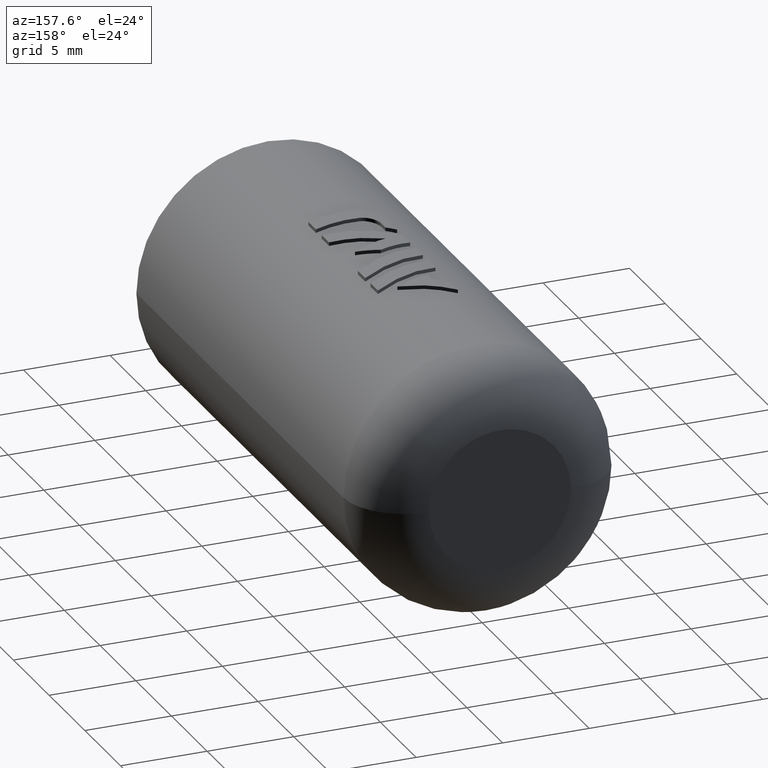
[diagram: clean part render]
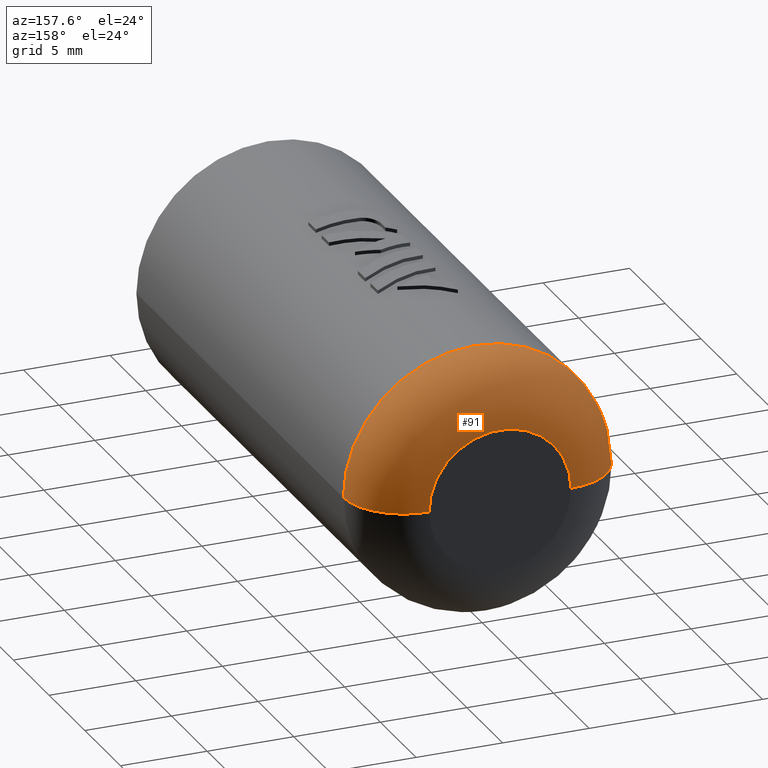
[diagram: same view with one face highlighted and labeled with its STEP entity id]
A machine part, auxiliary view. The second image highlights one B-rep face of the part: STEP entity #91.
In plain terms, the highlighted toroidal blend (fillet) surface has major radius 4.1 mm and minor (blend) radius 3.5 mm.
Its self-contained STEP definition (entity closure, byte-faithful):
#91=ADVANCED_FACE('',(#183),#184,.T.);
#183=FACE_OUTER_BOUND('',#1708,.T.);
#184=TOROIDAL_SURFACE('',#1709,4.1,3.5);
#1708=EDGE_LOOP('',(#1910,#1911,#1912,#1913));
#1709=AXIS2_PLACEMENT_3D('',#1914,#1915,#1916);
#1910=ORIENTED_EDGE('',*,*,#2560,.F.);
#1911=ORIENTED_EDGE('',*,*,#2561,.T.);
#1912=ORIENTED_EDGE('',*,*,#2562,.F.);
#1913=ORIENTED_EDGE('',*,*,#2563,.F.);
#1914=CARTESIAN_POINT('',(0.0,29.0,0.0));
#1915=DIRECTION('',(0.0,-1.0,0.0));
#1916=DIRECTION('',(1.0,0.0,-6.12323399573677E-17));
#2560=EDGE_CURVE('',#2786,#2787,#2788,.T.);
#2561=EDGE_CURVE('',#2786,#2789,#2790,.T.);
#2562=EDGE_CURVE('',#2791,#2789,#2792,.T.);
#2563=EDGE_CURVE('',#2787,#2791,#2793,.T.);
#2786=VERTEX_POINT('',#3833);
#2787=VERTEX_POINT('',#3834);
#2788=CIRCLE('',#3835,3.5);
#2789=VERTEX_POINT('',#3836);
#2790=CIRCLE('',#3837,4.1);
#2791=VERTEX_POINT('',#3838);
#2792=CIRCLE('',#3839,3.5);
#2793=CIRCLE('',#3840,7.6);
#3833=CARTESIAN_POINT('',(4.1,32.5,-2.51052593825208E-16));
#3834=CARTESIAN_POINT('',(7.6,29.0,-4.65365783675995E-16));
#3835=AXIS2_PLACEMENT_3D('',#4285,#4286,#4287);
#3836=CARTESIAN_POINT('',(-4.1,32.5,7.53157781475622E-16));
#3837=AXIS2_PLACEMENT_3D('',#4288,#4289,#4290);
#3838=CARTESIAN_POINT('',(-7.6,29.0,-4.65365783675994E-16));
#3839=AXIS2_PLACEMENT_3D('',#4291,#4292,#4293);
#3840=AXIS2_PLACEMENT_3D('',#4294,#4295,#4296);
#4285=CARTESIAN_POINT('',(4.1,29.0,-7.53157781475622E-16));
#4286=DIRECTION('',(-1.83697019872103E-16,-0.0,-1.0));
#4287=DIRECTION('',(1.0,0.0,-1.83697019872103E-16));
#4288=CARTESIAN_POINT('',(0.0,32.5,0.0));
#4289=DIRECTION('',(0.0,-1.0,0.0));
#4290=DIRECTION('',(1.0,0.0,-6.12323399573677E-17));
#4291=CARTESIAN_POINT('',(-4.1,29.0,7.53157781475622E-16));
#4292=DIRECTION('',(-1.83697019872103E-16,0.0,-1.0));
#4293=DIRECTION('',(-1.0,0.0,1.83697019872103E-16));
#4294=CARTESIAN_POINT('',(0.0,29.0,0.0));
#4295=DIRECTION('',(0.0,-1.0,0.0));
#4296=DIRECTION('',(1.0,0.0,-6.12323399573677E-17));